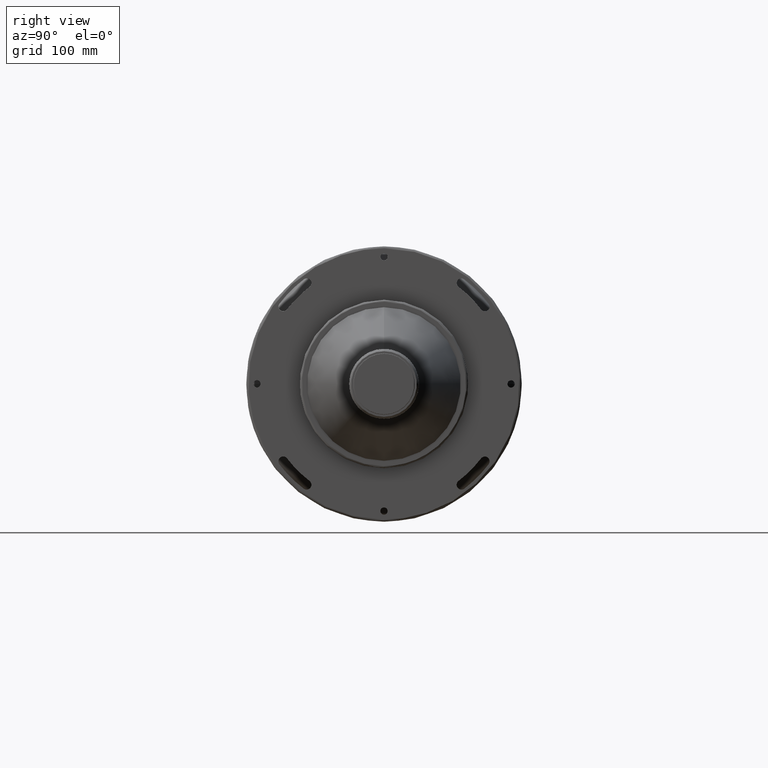
[diagram: clean part render]
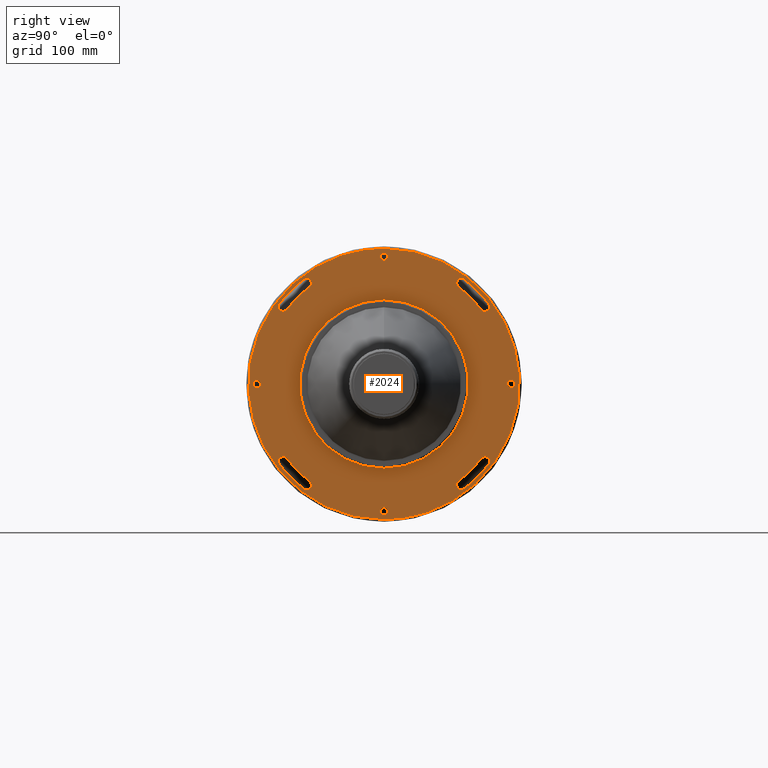
[diagram: same view with one face highlighted and labeled with its STEP entity id]
A machine part, right view. The second image highlights one B-rep face of the part: STEP entity #2024.
In plain terms, the highlighted planar face has unit normal (-1, 0, 0).
Its self-contained STEP definition (entity closure, byte-faithful):
#32 = AXIS2_PLACEMENT_3D ( 'NONE', #1146, #3661, #2045 ) ;
#40 = VERTEX_POINT ( 'NONE', #2695 ) ;
#44 = EDGE_CURVE ( 'NONE', #2639, #3859, #128, .T. ) ;
#48 = EDGE_LOOP ( 'NONE', ( #3340, #61, #3525, #2498, #3038 ) ) ;
#53 = AXIS2_PLACEMENT_3D ( 'NONE', #853, #3126, #3081 ) ;
#61 = ORIENTED_EDGE ( 'NONE', *, *, #3814, .F. ) ;
#92 = CIRCLE ( 'NONE', #2757, 115.5000000000000000 ) ;
#100 = CIRCLE ( 'NONE', #2912, 4.500000000000003600 ) ;
#128 = CIRCLE ( 'NONE', #3899, 3.400000000000000400 ) ;
#157 = DIRECTION ( 'NONE',  ( 1.000000000000000000, 0.0000000000000000000, 0.0000000000000000000 ) ) ;
#166 = VERTEX_POINT ( 'NONE', #2400 ) ;
#182 = CARTESIAN_POINT ( 'NONE',  ( -27.89999999999998100, 95.20240083499999200, 68.55137148100000400 ) ) ;
#186 = DIRECTION ( 'NONE',  ( 1.000000000000000000, 0.0000000000000000000, 0.0000000000000000000 ) ) ;
#215 = CARTESIAN_POINT ( 'NONE',  ( -27.89999999999998100, 0.0000000000000000000, 0.0000000000000000000 ) ) ;
#323 = EDGE_LOOP ( 'NONE', ( #3251, #2976, #2842, #1575, #1198 ) ) ;
#338 = CIRCLE ( 'NONE', #1033, 3.400000000000000400 ) ;
#372 = CIRCLE ( 'NONE', #3951, 79.50000000000000000 ) ;
#407 = CARTESIAN_POINT ( 'NONE',  ( -27.89999999980890500, 0.0000000000000000000, 127.9999999753477200 ) ) ;
#426 = CIRCLE ( 'NONE', #53, 4.500000000000003600 ) ;
#449 = CIRCLE ( 'NONE', #1234, 115.5000000000000000 ) ;
#467 = ORIENTED_EDGE ( 'NONE', *, *, #1839, .F. ) ;
#469 = DIRECTION ( 'NONE',  ( 0.0000000000000000000, 0.0000000000000000000, -1.000000000000000000 ) ) ;
#481 = VERTEX_POINT ( 'NONE', #3564 ) ;
#486 = FACE_OUTER_BOUND ( 'NONE', #2545, .T. ) ;
#487 = CARTESIAN_POINT ( 'NONE',  ( -27.89999999999999900, 0.0000000000000000000, -123.4000000000000100 ) ) ;
#488 = CARTESIAN_POINT ( 'NONE',  ( -27.89999999999999900, 0.0000000000000000000, -120.0000000000000000 ) ) ;
#494 = CARTESIAN_POINT ( 'NONE',  ( -27.89999999999998100, -95.20240083499999200, -73.05137148100000400 ) ) ;
#497 = CARTESIAN_POINT ( 'NONE',  ( -27.89999999999998100, 0.0000000000000000000, 0.0000000000000000000 ) ) ;
#500 = AXIS2_PLACEMENT_3D ( 'NONE', #2689, #515, #3943 ) ;
#508 = ORIENTED_EDGE ( 'NONE', *, *, #44, .F. ) ;
#510 = CARTESIAN_POINT ( 'NONE',  ( -27.89999999999999900, -120.0000000000000000, 0.0000000000000000000 ) ) ;
#515 = DIRECTION ( 'NONE',  ( 1.000000000000000000, 0.0000000000000000000, 0.0000000000000000000 ) ) ;
#523 = DIRECTION ( 'NONE',  ( 1.000000000000000000, 0.0000000000000000000, 0.0000000000000000000 ) ) ;
#526 = AXIS2_PLACEMENT_3D ( 'NONE', #497, #3920, #800 ) ;
#536 = VERTEX_POINT ( 'NONE', #3883 ) ;
#558 = CARTESIAN_POINT ( 'NONE',  ( -27.89999999999998100, -73.05137148100000400, -99.70240083499999200 ) ) ;
#561 = EDGE_CURVE ( 'NONE', #3230, #760, #449, .T. ) ;
#564 = VERTEX_POINT ( 'NONE', #1062 ) ;
#596 = CARTESIAN_POINT ( 'NONE',  ( -27.89999999999999900, 0.0000000000000000000, 120.0000000000000000 ) ) ;
#610 = ORIENTED_EDGE ( 'NONE', *, *, #2131, .F. ) ;
#657 = VERTEX_POINT ( 'NONE', #558 ) ;
#663 = EDGE_LOOP ( 'NONE', ( #1390, #2174 ) ) ;
#677 = CIRCLE ( 'NONE', #1527, 4.500000000000003600 ) ;
#681 = AXIS2_PLACEMENT_3D ( 'NONE', #849, #1181, #2163 ) ;
#705 = ORIENTED_EDGE ( 'NONE', *, *, #2361, .F. ) ;
#718 = FACE_BOUND ( 'NONE', #663, .T. ) ;
#733 = VERTEX_POINT ( 'NONE', #2480 ) ;
#745 = CARTESIAN_POINT ( 'NONE',  ( -27.89999999968151600, -256.0000000018774200, 128.0000000012986200 ) ) ;
#760 = VERTEX_POINT ( 'NONE', #2102 ) ;
#788 = CARTESIAN_POINT ( 'NONE',  ( -27.89999999999999900, 120.0000000000000000, 0.0000000000000000000 ) ) ;
#800 = DIRECTION ( 'NONE',  ( 0.0000000000000000000, 0.0000000000000000000, -1.000000000000000000 ) ) ;
#801 = ORIENTED_EDGE ( 'NONE', *, *, #3660, .T. ) ;
#802 = ORIENTED_EDGE ( 'NONE', *, *, #3104, .F. ) ;
#805 = AXIS2_PLACEMENT_3D ( 'NONE', #788, #2958, #2035 ) ;
#809 = CARTESIAN_POINT ( 'NONE',  ( -27.89999999999998100, 0.0000000000000000000, 79.50000000000000000 ) ) ;
#832 = CIRCLE ( 'NONE', #3097, 124.5000000000000000 ) ;
#835 = EDGE_CURVE ( 'NONE', #657, #760, #3754, .T. ) ;
#841 = DIRECTION ( 'NONE',  ( 0.0000000000000000000, 0.0000000000000000000, -1.000000000000000000 ) ) ;
#843 = CARTESIAN_POINT ( 'NONE',  ( -27.89999999999998100, 91.63231081395537100, 70.31194503707143900 ) ) ;
#849 = CARTESIAN_POINT ( 'NONE',  ( -27.89999999999998100, -95.20240083499999200, 73.05137148100000400 ) ) ;
#853 = CARTESIAN_POINT ( 'NONE',  ( -27.89999999999998100, 95.20240083499999200, -73.05137148100000400 ) ) ;
#881 = CARTESIAN_POINT ( 'NONE',  ( -27.89999999999998100, -73.05137148100000400, -95.20240083499999200 ) ) ;
#891 = CARTESIAN_POINT ( 'NONE',  ( -27.89999999999998100, 0.0000000000000000000, 0.0000000000000000000 ) ) ;
#897 = VERTEX_POINT ( 'NONE', #954 ) ;
#903 = CIRCLE ( 'NONE', #2147, 4.500000000000003600 ) ;
#923 = DIRECTION ( 'NONE',  ( 1.000000000000000000, 0.0000000000000000000, 0.0000000000000000000 ) ) ;
#929 = AXIS2_PLACEMENT_3D ( 'NONE', #1653, #1620, #3845 ) ;
#954 = CARTESIAN_POINT ( 'NONE',  ( -27.89999999999998100, 75.79079791609713400, 98.77249086279704200 ) ) ;
#984 = EDGE_CURVE ( 'NONE', #3816, #3431, #3557, .T. ) ;
#989 = EDGE_CURVE ( 'NONE', #1432, #2148, #1459, .T. ) ;
#991 = CARTESIAN_POINT ( 'NONE',  ( -27.89999999999999900, 0.0000000000000000000, 116.5999999999999900 ) ) ;
#1033 = AXIS2_PLACEMENT_3D ( 'NONE', #3972, #1471, #1178 ) ;
#1035 = EDGE_LOOP ( 'NONE', ( #508, #467 ) ) ;
#1054 = DIRECTION ( 'NONE',  ( 1.000000000000000000, 0.0000000000000000000, 0.0000000000000000000 ) ) ;
#1057 = DIRECTION ( 'NONE',  ( 1.000000000000000000, -0.0000000000000000000, -0.0000000000000000000 ) ) ;
#1062 = CARTESIAN_POINT ( 'NONE',  ( -27.89999999999998100, 98.77249086671233200, 75.79079791101561600 ) ) ;
#1086 = EDGE_CURVE ( 'NONE', #481, #2625, #832, .T. ) ;
#1087 = CARTESIAN_POINT ( 'NONE',  ( -27.89999999999998100, 0.0000000000000000000, 0.0000000000000000000 ) ) ;
#1088 = DIRECTION ( 'NONE',  ( 0.0000000000000000000, 0.0000000000000000000, -1.000000000000000000 ) ) ;
#1111 = CARTESIAN_POINT ( 'NONE',  ( -27.89999999999998100, 73.05137148100000400, 95.20240083499999200 ) ) ;
#1135 = ORIENTED_EDGE ( 'NONE', *, *, #3829, .F. ) ;
#1146 = CARTESIAN_POINT ( 'NONE',  ( -27.89999999999999900, 0.0000000000000000000, -120.0000000000000000 ) ) ;
#1178 = DIRECTION ( 'NONE',  ( 0.0000000000000000000, 0.0000000000000000000, -1.000000000000000000 ) ) ;
#1181 = DIRECTION ( 'NONE',  ( 1.000000000000000000, 0.0000000000000000000, 0.0000000000000000000 ) ) ;
#1198 = ORIENTED_EDGE ( 'NONE', *, *, #3040, .F. ) ;
#1204 = DIRECTION ( 'NONE',  ( 1.000000000000000000, 0.0000000000000000000, 0.0000000000000000000 ) ) ;
#1232 = AXIS2_PLACEMENT_3D ( 'NONE', #2881, #1054, #3187 ) ;
#1234 = AXIS2_PLACEMENT_3D ( 'NONE', #2907, #2624, #1088 ) ;
#1250 = EDGE_LOOP ( 'NONE', ( #1816, #610 ) ) ;
#1257 = EDGE_CURVE ( 'NONE', #3014, #3717, #1800, .T. ) ;
#1292 = DIRECTION ( 'NONE',  ( 0.0000000000000000000, 0.0000000000000000000, -1.000000000000000000 ) ) ;
#1304 = CIRCLE ( 'NONE', #526, 124.5000000000000000 ) ;
#1306 = DIRECTION ( 'NONE',  ( 1.000000000000000000, 0.0000000000000000000, 0.0000000000000000000 ) ) ;
#1310 = FACE_BOUND ( 'NONE', #1690, .T. ) ;
#1337 = EDGE_LOOP ( 'NONE', ( #705, #2142, #2823, #3862, #1135 ) ) ;
#1357 = FACE_BOUND ( 'NONE', #1817, .T. ) ;
#1379 = CARTESIAN_POINT ( 'NONE',  ( -27.89999999999998100, -91.63231080328256400, -70.31194505098048400 ) ) ;
#1390 = ORIENTED_EDGE ( 'NONE', *, *, #2454, .F. ) ;
#1392 = VERTEX_POINT ( 'NONE', #3947 ) ;
#1400 = CIRCLE ( 'NONE', #1517, 4.500000000000003600 ) ;
#1432 = VERTEX_POINT ( 'NONE', #2182 ) ;
#1452 = AXIS2_PLACEMENT_3D ( 'NONE', #2787, #1824, #2140 ) ;
#1459 = CIRCLE ( 'NONE', #805, 3.399999999999999900 ) ;
#1471 = DIRECTION ( 'NONE',  ( 1.000000000000000000, -0.0000000000000000000, 0.0000000000000000000 ) ) ;
#1478 = DIRECTION ( 'NONE',  ( 1.000000000000000000, 0.0000000000000000000, 0.0000000000000000000 ) ) ;
#1485 = ORIENTED_EDGE ( 'NONE', *, *, #3055, .F. ) ;
#1501 = ORIENTED_EDGE ( 'NONE', *, *, #1848, .F. ) ;
#1517 = AXIS2_PLACEMENT_3D ( 'NONE', #3901, #3271, #3615 ) ;
#1527 = AXIS2_PLACEMENT_3D ( 'NONE', #881, #1204, #2107 ) ;
#1542 = CIRCLE ( 'NONE', #1934, 3.399999999999999900 ) ;
#1553 = DIRECTION ( 'NONE',  ( 0.0000000000000000000, 0.0000000000000000000, -1.000000000000000000 ) ) ;
#1575 = ORIENTED_EDGE ( 'NONE', *, *, #1257, .T. ) ;
#1601 = EDGE_CURVE ( 'NONE', #3014, #3547, #100, .T. ) ;
#1617 = EDGE_CURVE ( 'NONE', #733, #2495, #3209, .T. ) ;
#1620 = DIRECTION ( 'NONE',  ( 1.000000000000000000, 0.0000000000000000000, 0.0000000000000000000 ) ) ;
#1627 = ORIENTED_EDGE ( 'NONE', *, *, #3567, .F. ) ;
#1633 = FACE_BOUND ( 'NONE', #2650, .T. ) ;
#1643 = AXIS2_PLACEMENT_3D ( 'NONE', #494, #157, #2970 ) ;
#1653 = CARTESIAN_POINT ( 'NONE',  ( -27.89999999999998100, -95.20240083499999200, 73.05137148100000400 ) ) ;
#1690 = EDGE_LOOP ( 'NONE', ( #802, #2194 ) ) ;
#1691 = EDGE_CURVE ( 'NONE', #1943, #40, #1796, .T. ) ;
#1716 = CARTESIAN_POINT ( 'NONE',  ( -27.89999999999998100, -91.63231080409548200, 70.31194504993158000 ) ) ;
#1736 = FACE_BOUND ( 'NONE', #1035, .T. ) ;
#1758 = CARTESIAN_POINT ( 'NONE',  ( -27.89999999999998100, 0.0000000000000000000, 0.0000000000000000000 ) ) ;
#1769 = ORIENTED_EDGE ( 'NONE', *, *, #1086, .F. ) ;
#1782 = CARTESIAN_POINT ( 'NONE',  ( -27.89999999980890500, 0.0000000000000000000, -127.9999999753477500 ) ) ;
#1796 = CIRCLE ( 'NONE', #500, 115.5000000000000000 ) ;
#1797 = CARTESIAN_POINT ( 'NONE',  ( -27.89999999980890500, 0.0000000000000000000, 127.9999999753477200 ) ) ;
#1800 = CIRCLE ( 'NONE', #3596, 115.5000000000000000 ) ;
#1806 = VERTEX_POINT ( 'NONE', #182 ) ;
#1816 = ORIENTED_EDGE ( 'NONE', *, *, #2936, .F. ) ;
#1817 = EDGE_LOOP ( 'NONE', ( #1769, #2799, #801, #2474, #1627 ) ) ;
#1824 = DIRECTION ( 'NONE',  ( 1.000000000000000000, 0.0000000000000000000, 0.0000000000000000000 ) ) ;
#1839 = EDGE_CURVE ( 'NONE', #3859, #2639, #338, .T. ) ;
#1848 = EDGE_CURVE ( 'NONE', #2495, #733, #2482, .T. ) ;
#1878 = DIRECTION ( 'NONE',  ( 1.000000000000000000, -0.0000000000000000000, 0.0000000000000000000 ) ) ;
#1910 = AXIS2_PLACEMENT_3D ( 'NONE', #3841, #3536, #3521 ) ;
#1934 = AXIS2_PLACEMENT_3D ( 'NONE', #3997, #3084, #2134 ) ;
#1943 = VERTEX_POINT ( 'NONE', #843 ) ;
#1967 = AXIS2_PLACEMENT_3D ( 'NONE', #3154, #3129, #3794 ) ;
#2015 = CIRCLE ( 'NONE', #1967, 4.500000000000003600 ) ;
#2024 = ADVANCED_FACE ( 'NONE', ( #718, #1736, #1310, #1633, #3781, #2901, #2063, #1357, #3101, #486 ), #3324, .F. ) ;
#2031 = EDGE_CURVE ( 'NONE', #1392, #657, #677, .T. ) ;
#2035 = DIRECTION ( 'NONE',  ( 0.0000000000000000000, 0.0000000000000000000, -1.000000000000000000 ) ) ;
#2045 = DIRECTION ( 'NONE',  ( 0.0000000000000000000, 0.0000000000000000000, -1.000000000000000000 ) ) ;
#2060 = CIRCLE ( 'NONE', #2415, 3.400000000000014100 ) ;
#2061 = DIRECTION ( 'NONE',  ( 1.000000000000000000, 0.0000000000000000000, 0.0000000000000000000 ) ) ;
#2063 = FACE_BOUND ( 'NONE', #1337, .T. ) ;
#2071 = CIRCLE ( 'NONE', #1643, 4.500000000000003600 ) ;
#2102 = CARTESIAN_POINT ( 'NONE',  ( -27.89999999999998100, -70.31194505029769500, -91.63231080381456200 ) ) ;
#2107 = DIRECTION ( 'NONE',  ( 0.0000000000000000000, 0.0000000000000000000, -1.000000000000000000 ) ) ;
#2117 = AXIS2_PLACEMENT_3D ( 'NONE', #215, #1478, #841 ) ;
#2131 = EDGE_CURVE ( 'NONE', #2840, #3576, #1542, .T. ) ;
#2134 = DIRECTION ( 'NONE',  ( 0.0000000000000000000, 0.0000000000000000000, -1.000000000000000000 ) ) ;
#2140 = DIRECTION ( 'NONE',  ( 0.0000000000000000000, 0.0000000000000000000, -1.000000000000000000 ) ) ;
#2142 = ORIENTED_EDGE ( 'NONE', *, *, #3280, .F. ) ;
#2147 = AXIS2_PLACEMENT_3D ( 'NONE', #3646, #3955, #2734 ) ;
#2148 = VERTEX_POINT ( 'NONE', #3076 ) ;
#2163 = DIRECTION ( 'NONE',  ( 0.0000000000000000000, 0.0000000000000000000, -1.000000000000000000 ) ) ;
#2174 = ORIENTED_EDGE ( 'NONE', *, *, #2915, .F. ) ;
#2182 = CARTESIAN_POINT ( 'NONE',  ( -27.89999999999999900, 120.0000000000000000, 3.399999999999999900 ) ) ;
#2194 = ORIENTED_EDGE ( 'NONE', *, *, #989, .F. ) ;
#2239 = EDGE_CURVE ( 'NONE', #3514, #3811, #3299, .T. ) ;
#2251 = VERTEX_POINT ( 'NONE', #2299 ) ;
#2261 = CARTESIAN_POINT ( 'NONE',  ( -27.89999999999999900, 4.163799117101001100E-016, 123.3999999999999900 ) ) ;
#2299 = CARTESIAN_POINT ( 'NONE',  ( -27.89999999999998100, 98.77249085502457100, -75.79079792622641800 ) ) ;
#2343 = DIRECTION ( 'NONE',  ( 0.0000000000000000000, 0.0000000000000000000, -1.000000000000000000 ) ) ;
#2346 = EDGE_CURVE ( 'NONE', #536, #1392, #3634, .T. ) ;
#2361 = EDGE_CURVE ( 'NONE', #564, #897, #1304, .T. ) ;
#2388 = CARTESIAN_POINT ( 'NONE',  ( -27.89999999968152300, 256.0000000018774800, -128.0000000012986400 ) ) ;
#2400 = CARTESIAN_POINT ( 'NONE',  ( -27.89999999999999900, 4.163799117101018300E-016, -116.5999999999999800 ) ) ;
#2415 = AXIS2_PLACEMENT_3D ( 'NONE', #488, #523, #2343 ) ;
#2454 = EDGE_CURVE ( 'NONE', #3971, #166, #2615, .T. ) ;
#2474 = ORIENTED_EDGE ( 'NONE', *, *, #2239, .F. ) ;
#2480 = CARTESIAN_POINT ( 'NONE',  ( -27.89999999980890500, 0.0000000000000000000, -127.9999999753477500 ) ) ;
#2482 =( BOUNDED_CURVE ( )  B_SPLINE_CURVE ( 3, ( #2735, #3647, #2388, #1782 ),
 .UNSPECIFIED., .F., .F. ) 
 B_SPLINE_CURVE_WITH_KNOTS ( ( 4, 4 ),
 ( 0.0000000000000000000, 1.000000000000000000 ),
 .UNSPECIFIED. ) 
 CURVE ( )  GEOMETRIC_REPRESENTATION_ITEM ( )  RATIONAL_B_SPLINE_CURVE ( ( 0.9565783021300938700, 0.3188594340433642500, 0.3188594340433642500, 0.9565783021300938700 ) ) 
 REPRESENTATION_ITEM ( '' )  );
#2494 = EDGE_CURVE ( 'NONE', #2654, #481, #903, .T. ) ;
#2495 = VERTEX_POINT ( 'NONE', #1797 ) ;
#2498 = ORIENTED_EDGE ( 'NONE', *, *, #835, .F. ) ;
#2510 = DIRECTION ( 'NONE',  ( 0.0000000000000000000, 0.0000000000000000000, 1.000000000000000000 ) ) ;
#2516 = CIRCLE ( 'NONE', #681, 4.500000000000003600 ) ;
#2545 = EDGE_LOOP ( 'NONE', ( #1501, #2658 ) ) ;
#2561 = CIRCLE ( 'NONE', #1232, 4.500000000000003600 ) ;
#2567 = CARTESIAN_POINT ( 'NONE',  ( -27.89999999999998100, 9.735942053221458500E-015, -79.50000000000000000 ) ) ;
#2615 = CIRCLE ( 'NONE', #32, 3.400000000000014100 ) ;
#2624 = DIRECTION ( 'NONE',  ( 1.000000000000000000, 0.0000000000000000000, 0.0000000000000000000 ) ) ;
#2625 = VERTEX_POINT ( 'NONE', #2779 ) ;
#2639 = VERTEX_POINT ( 'NONE', #991 ) ;
#2641 = CARTESIAN_POINT ( 'NONE',  ( -27.89999999999998100, 0.0000000000000000000, 0.0000000000000000000 ) ) ;
#2646 = EDGE_CURVE ( 'NONE', #3547, #3145, #2015, .T. ) ;
#2650 = EDGE_LOOP ( 'NONE', ( #3946, #1485 ) ) ;
#2654 = VERTEX_POINT ( 'NONE', #2841 ) ;
#2658 = ORIENTED_EDGE ( 'NONE', *, *, #1617, .F. ) ;
#2687 = AXIS2_PLACEMENT_3D ( 'NONE', #1087, #186, #2931 ) ;
#2689 = CARTESIAN_POINT ( 'NONE',  ( -27.89999999999998100, 0.0000000000000000000, 0.0000000000000000000 ) ) ;
#2695 = CARTESIAN_POINT ( 'NONE',  ( -27.89999999999998100, 70.31194505102993700, 91.63231080325267900 ) ) ;
#2734 = DIRECTION ( 'NONE',  ( 0.0000000000000000000, 0.0000000000000000000, -1.000000000000000000 ) ) ;
#2735 = CARTESIAN_POINT ( 'NONE',  ( -27.89999999980890500, 0.0000000000000000000, 127.9999999753477200 ) ) ;
#2757 = AXIS2_PLACEMENT_3D ( 'NONE', #2861, #1306, #1292 ) ;
#2779 = CARTESIAN_POINT ( 'NONE',  ( -27.89999999999998100, -98.77249087056949900, 75.79079790596790600 ) ) ;
#2787 = CARTESIAN_POINT ( 'NONE',  ( -27.89999999999999900, 120.0000000000000000, 0.0000000000000000000 ) ) ;
#2793 = CARTESIAN_POINT ( 'NONE',  ( -27.89999999999998100, 0.0000000000000000000, 0.0000000000000000000 ) ) ;
#2799 = ORIENTED_EDGE ( 'NONE', *, *, #2494, .F. ) ;
#2823 = ORIENTED_EDGE ( 'NONE', *, *, #3805, .F. ) ;
#2840 = VERTEX_POINT ( 'NONE', #3226 ) ;
#2841 = CARTESIAN_POINT ( 'NONE',  ( -27.89999999999998100, -70.31194505134662600, 91.63231080300163000 ) ) ;
#2842 = ORIENTED_EDGE ( 'NONE', *, *, #1601, .F. ) ;
#2861 = CARTESIAN_POINT ( 'NONE',  ( -27.89999999999998100, 0.0000000000000000000, 0.0000000000000000000 ) ) ;
#2881 = CARTESIAN_POINT ( 'NONE',  ( -27.89999999999998100, 95.20240083499999200, 73.05137148100000400 ) ) ;
#2883 = AXIS2_PLACEMENT_3D ( 'NONE', #2641, #1057, #3602 ) ;
#2901 = FACE_BOUND ( 'NONE', #323, .T. ) ;
#2907 = CARTESIAN_POINT ( 'NONE',  ( -27.89999999999998100, 0.0000000000000000000, 0.0000000000000000000 ) ) ;
#2912 = AXIS2_PLACEMENT_3D ( 'NONE', #3853, #3255, #3828 ) ;
#2915 = EDGE_CURVE ( 'NONE', #166, #3971, #2060, .T. ) ;
#2931 = DIRECTION ( 'NONE',  ( 0.0000000000000000000, 0.0000000000000000000, -1.000000000000000000 ) ) ;
#2936 = EDGE_CURVE ( 'NONE', #3576, #2840, #3194, .T. ) ;
#2957 = EDGE_CURVE ( 'NONE', #3145, #2251, #3096, .T. ) ;
#2958 = DIRECTION ( 'NONE',  ( 1.000000000000000000, 0.0000000000000000000, 0.0000000000000000000 ) ) ;
#2970 = DIRECTION ( 'NONE',  ( 0.0000000000000000000, 0.0000000000000000000, -1.000000000000000000 ) ) ;
#2976 = ORIENTED_EDGE ( 'NONE', *, *, #2646, .F. ) ;
#3014 = VERTEX_POINT ( 'NONE', #3965 ) ;
#3038 = ORIENTED_EDGE ( 'NONE', *, *, #2031, .F. ) ;
#3040 = EDGE_CURVE ( 'NONE', #2251, #3717, #426, .T. ) ;
#3055 = EDGE_CURVE ( 'NONE', #3431, #3816, #372, .T. ) ;
#3066 = DIRECTION ( 'NONE',  ( -1.000000000000000000, 0.0000000000000000000, 0.0000000000000000000 ) ) ;
#3076 = CARTESIAN_POINT ( 'NONE',  ( -27.89999999999999900, 120.0000000000000000, -3.399999999999999900 ) ) ;
#3081 = DIRECTION ( 'NONE',  ( 0.0000000000000000000, 0.0000000000000000000, -1.000000000000000000 ) ) ;
#3084 = DIRECTION ( 'NONE',  ( 1.000000000000000000, 0.0000000000000000000, 0.0000000000000000000 ) ) ;
#3087 = DIRECTION ( 'NONE',  ( 0.0000000000000000000, 0.0000000000000000000, -1.000000000000000000 ) ) ;
#3096 = CIRCLE ( 'NONE', #2117, 124.5000000000000000 ) ;
#3097 = AXIS2_PLACEMENT_3D ( 'NONE', #1758, #2061, #3360 ) ;
#3100 = CARTESIAN_POINT ( 'NONE',  ( -27.89999999999999900, -129.5360000000000000, -129.5360000000000000 ) ) ;
#3101 = FACE_BOUND ( 'NONE', #48, .T. ) ;
#3104 = EDGE_CURVE ( 'NONE', #2148, #1432, #3918, .T. ) ;
#3119 = CARTESIAN_POINT ( 'NONE',  ( -27.89999999999999900, -120.0000000000000000, -3.399999999999999900 ) ) ;
#3126 = DIRECTION ( 'NONE',  ( 1.000000000000000000, 0.0000000000000000000, 0.0000000000000000000 ) ) ;
#3129 = DIRECTION ( 'NONE',  ( 1.000000000000000000, 0.0000000000000000000, 0.0000000000000000000 ) ) ;
#3145 = VERTEX_POINT ( 'NONE', #3723 ) ;
#3154 = CARTESIAN_POINT ( 'NONE',  ( -27.89999999999998100, 73.05137148100000400, -95.20240083499999200 ) ) ;
#3187 = DIRECTION ( 'NONE',  ( 0.0000000000000000000, 0.0000000000000000000, -1.000000000000000000 ) ) ;
#3194 = CIRCLE ( 'NONE', #3876, 3.399999999999999900 ) ;
#3199 = AXIS2_PLACEMENT_3D ( 'NONE', #3100, #3066, #3403 ) ;
#3209 =( BOUNDED_CURVE ( )  B_SPLINE_CURVE ( 3, ( #3879, #3839, #745, #407 ),
 .UNSPECIFIED., .F., .F. ) 
 B_SPLINE_CURVE_WITH_KNOTS ( ( 4, 4 ),
 ( 0.0000000000000000000, 1.000000000000000000 ),
 .UNSPECIFIED. ) 
 CURVE ( )  GEOMETRIC_REPRESENTATION_ITEM ( )  RATIONAL_B_SPLINE_CURVE ( ( 0.9565783021300959800, 0.3188594340433649800, 0.3188594340433649800, 0.9565783021300959800 ) ) 
 REPRESENTATION_ITEM ( '' )  );
#3226 = CARTESIAN_POINT ( 'NONE',  ( -27.89999999999999900, -120.0000000000000000, 3.399999999999999900 ) ) ;
#3230 = VERTEX_POINT ( 'NONE', #1379 ) ;
#3251 = ORIENTED_EDGE ( 'NONE', *, *, #2957, .F. ) ;
#3255 = DIRECTION ( 'NONE',  ( 1.000000000000000000, 0.0000000000000000000, 0.0000000000000000000 ) ) ;
#3271 = DIRECTION ( 'NONE',  ( 1.000000000000000000, 0.0000000000000000000, 0.0000000000000000000 ) ) ;
#3280 = EDGE_CURVE ( 'NONE', #1806, #564, #2561, .T. ) ;
#3299 = CIRCLE ( 'NONE', #929, 4.500000000000003600 ) ;
#3324 = PLANE ( 'NONE',  #3199 ) ;
#3340 = ORIENTED_EDGE ( 'NONE', *, *, #2346, .F. ) ;
#3350 = CARTESIAN_POINT ( 'NONE',  ( -27.89999999999998100, -95.20240083499999200, 68.55137148100000400 ) ) ;
#3360 = DIRECTION ( 'NONE',  ( 0.0000000000000000000, 0.0000000000000000000, -1.000000000000000000 ) ) ;
#3389 = DIRECTION ( 'NONE',  ( 1.000000000000000000, -0.0000000000000000000, -0.0000000000000000000 ) ) ;
#3403 = DIRECTION ( 'NONE',  ( 0.0000000000000000000, 0.0000000000000000000, 1.000000000000000000 ) ) ;
#3421 = CARTESIAN_POINT ( 'NONE',  ( -27.89999999999998100, 73.05137148100000400, -99.70240083499999200 ) ) ;
#3431 = VERTEX_POINT ( 'NONE', #2567 ) ;
#3494 = CARTESIAN_POINT ( 'NONE',  ( -27.89999999999998100, 91.63231080353362800, -70.31194505066382300 ) ) ;
#3514 = VERTEX_POINT ( 'NONE', #3350 ) ;
#3521 = DIRECTION ( 'NONE',  ( 0.0000000000000000000, 0.0000000000000000000, -1.000000000000000000 ) ) ;
#3525 = ORIENTED_EDGE ( 'NONE', *, *, #561, .T. ) ;
#3536 = DIRECTION ( 'NONE',  ( 1.000000000000000000, 0.0000000000000000000, 0.0000000000000000000 ) ) ;
#3547 = VERTEX_POINT ( 'NONE', #3421 ) ;
#3557 = CIRCLE ( 'NONE', #2883, 79.50000000000000000 ) ;
#3564 = CARTESIAN_POINT ( 'NONE',  ( -27.89999999999998100, -75.79079791138174500, 98.77249086643141100 ) ) ;
#3566 = DIRECTION ( 'NONE',  ( 1.000000000000000000, 0.0000000000000000000, 0.0000000000000000000 ) ) ;
#3567 = EDGE_CURVE ( 'NONE', #2625, #3514, #2516, .T. ) ;
#3576 = VERTEX_POINT ( 'NONE', #3119 ) ;
#3596 = AXIS2_PLACEMENT_3D ( 'NONE', #2793, #923, #1553 ) ;
#3600 = DIRECTION ( 'NONE',  ( 0.0000000000000000000, 0.0000000000000000000, -1.000000000000000000 ) ) ;
#3602 = DIRECTION ( 'NONE',  ( 0.0000000000000000000, 0.0000000000000000000, 1.000000000000000000 ) ) ;
#3615 = DIRECTION ( 'NONE',  ( 0.0000000000000000000, 0.0000000000000000000, -1.000000000000000000 ) ) ;
#3634 = CIRCLE ( 'NONE', #2687, 124.5000000000000000 ) ;
#3646 = CARTESIAN_POINT ( 'NONE',  ( -27.89999999999998100, -73.05137148100000400, 95.20240083499999200 ) ) ;
#3647 = CARTESIAN_POINT ( 'NONE',  ( -27.89999999968152300, 256.0000000018774800, 128.0000000012986400 ) ) ;
#3660 = EDGE_CURVE ( 'NONE', #2654, #3811, #92, .T. ) ;
#3661 = DIRECTION ( 'NONE',  ( 1.000000000000000000, 0.0000000000000000000, 0.0000000000000000000 ) ) ;
#3717 = VERTEX_POINT ( 'NONE', #3494 ) ;
#3723 = CARTESIAN_POINT ( 'NONE',  ( -27.89999999999998100, 75.79079791064951600, -98.77249086699328000 ) ) ;
#3754 = CIRCLE ( 'NONE', #1910, 4.500000000000003600 ) ;
#3781 = FACE_BOUND ( 'NONE', #1250, .T. ) ;
#3794 = DIRECTION ( 'NONE',  ( 0.0000000000000000000, 0.0000000000000000000, -1.000000000000000000 ) ) ;
#3805 = EDGE_CURVE ( 'NONE', #1943, #1806, #1400, .T. ) ;
#3811 = VERTEX_POINT ( 'NONE', #1716 ) ;
#3814 = EDGE_CURVE ( 'NONE', #3230, #536, #2071, .T. ) ;
#3816 = VERTEX_POINT ( 'NONE', #809 ) ;
#3828 = DIRECTION ( 'NONE',  ( 0.0000000000000000000, 0.0000000000000000000, -1.000000000000000000 ) ) ;
#3829 = EDGE_CURVE ( 'NONE', #897, #40, #3878, .T. ) ;
#3839 = CARTESIAN_POINT ( 'NONE',  ( -27.89999999968151600, -256.0000000018774200, -128.0000000012986200 ) ) ;
#3841 = CARTESIAN_POINT ( 'NONE',  ( -27.89999999999998100, -73.05137148100000400, -95.20240083499999200 ) ) ;
#3845 = DIRECTION ( 'NONE',  ( 0.0000000000000000000, 0.0000000000000000000, -1.000000000000000000 ) ) ;
#3853 = CARTESIAN_POINT ( 'NONE',  ( -27.89999999999998100, 73.05137148100000400, -95.20240083499999200 ) ) ;
#3859 = VERTEX_POINT ( 'NONE', #2261 ) ;
#3862 = ORIENTED_EDGE ( 'NONE', *, *, #1691, .T. ) ;
#3876 = AXIS2_PLACEMENT_3D ( 'NONE', #510, #3566, #469 ) ;
#3878 = CIRCLE ( 'NONE', #3964, 4.500000000000003600 ) ;
#3879 = CARTESIAN_POINT ( 'NONE',  ( -27.89999999980890500, 0.0000000000000000000, -127.9999999753477500 ) ) ;
#3883 = CARTESIAN_POINT ( 'NONE',  ( -27.89999999999998100, -98.77249086615047700, -75.79079791174785900 ) ) ;
#3891 = DIRECTION ( 'NONE',  ( 1.000000000000000000, 0.0000000000000000000, 0.0000000000000000000 ) ) ;
#3899 = AXIS2_PLACEMENT_3D ( 'NONE', #596, #1878, #3087 ) ;
#3901 = CARTESIAN_POINT ( 'NONE',  ( -27.89999999999998100, 95.20240083499999200, 73.05137148100000400 ) ) ;
#3918 = CIRCLE ( 'NONE', #1452, 3.399999999999999900 ) ;
#3920 = DIRECTION ( 'NONE',  ( 1.000000000000000000, 0.0000000000000000000, 0.0000000000000000000 ) ) ;
#3943 = DIRECTION ( 'NONE',  ( 0.0000000000000000000, 0.0000000000000000000, -1.000000000000000000 ) ) ;
#3946 = ORIENTED_EDGE ( 'NONE', *, *, #984, .F. ) ;
#3947 = CARTESIAN_POINT ( 'NONE',  ( -27.89999999999998100, -75.79079789583865100, -98.77249087834191200 ) ) ;
#3951 = AXIS2_PLACEMENT_3D ( 'NONE', #891, #3389, #2510 ) ;
#3955 = DIRECTION ( 'NONE',  ( 1.000000000000000000, 0.0000000000000000000, 0.0000000000000000000 ) ) ;
#3964 = AXIS2_PLACEMENT_3D ( 'NONE', #1111, #3891, #3600 ) ;
#3965 = CARTESIAN_POINT ( 'NONE',  ( -27.89999999999998100, 70.31194502767438300, -91.63231082116598700 ) ) ;
#3971 = VERTEX_POINT ( 'NONE', #487 ) ;
#3972 = CARTESIAN_POINT ( 'NONE',  ( -27.89999999999999900, 0.0000000000000000000, 120.0000000000000000 ) ) ;
#3997 = CARTESIAN_POINT ( 'NONE',  ( -27.89999999999999900, -120.0000000000000000, 0.0000000000000000000 ) ) ;